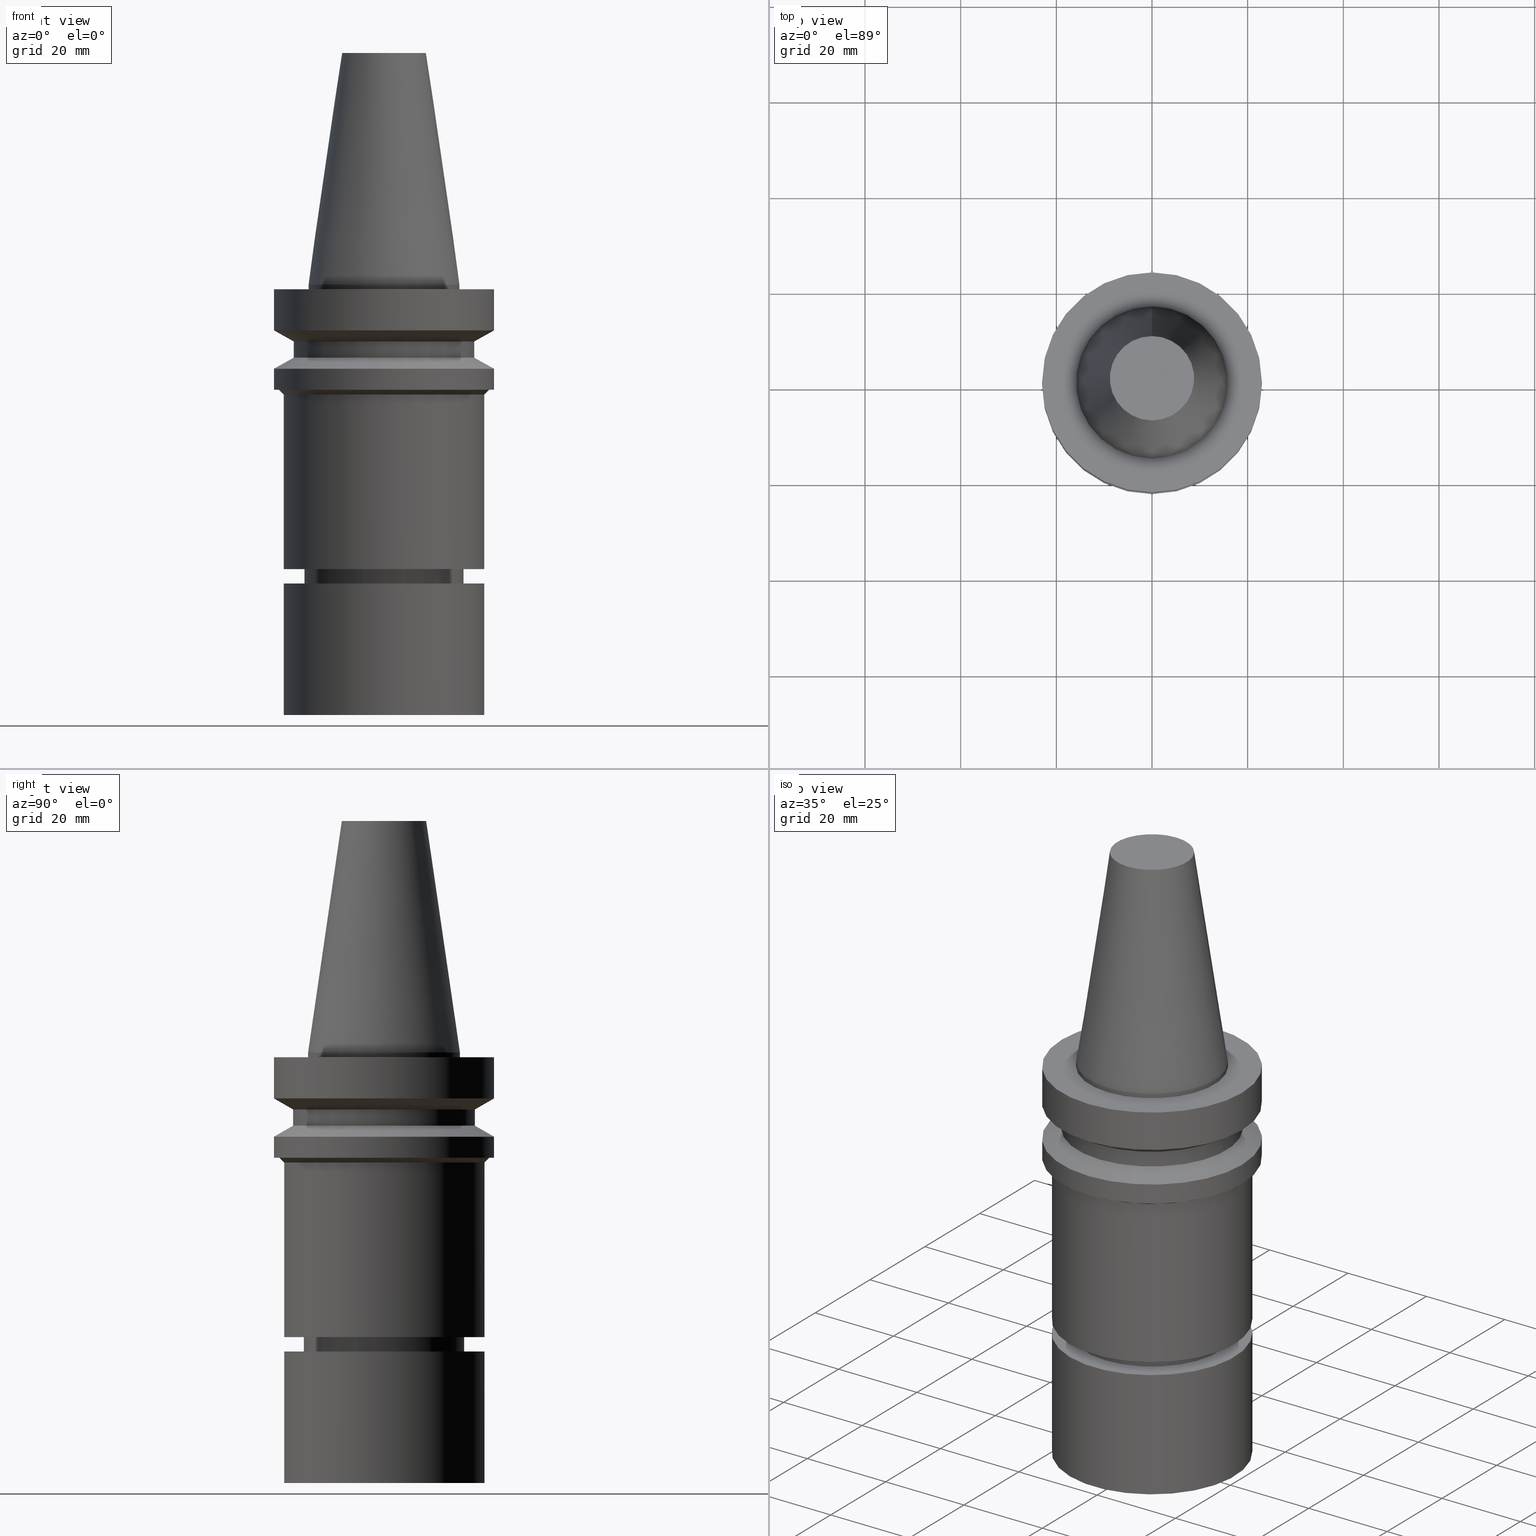
[diagram: canonical four-view strip — front | top / right | iso, engineering-drawing reading convention]
A machine part, canonical four-view strip (front | top / right | iso — engineering-drawing reading convention). The complete STEP part file that produces these views, byte-faithful:
ISO-10303-21;
HEADER;
FILE_DESCRIPTION((''),'1');
FILE_NAME('V:/90_\X2\53D65F9730C730FC30BF\X0\/00_\X2\6DE18DEF30C730FC30BF\X0\/ALL/BBT-BKUS\X2\FF76FF80FF9BFF78FF9E752852A05DE556F3\X0\201801/BBT30-MEGAER/BBT30-MEGAER25-90NL.stp','2018-02-02T07:28:23',(''),(''),'Spatial Interop R21 SP3','Kubotek KeyCreator 2011 V10.0.2 (22737)',' ');
FILE_SCHEMA(('automotive_design'));
ENDSEC;
DATA;
#1=MECHANICAL_DESIGN_GEOMETRIC_PRESENTATION_REPRESENTATION(' ',(#14,#15,#16,#17,#18,#19,#20,#21,#22,#23,#24,#25,#26,#27,#28,#29,#30,#31,#32,#33,#34,#35,#36,#37,#38,#39,#40,#41,#42,#43,#44,#45,#46,#47,#48,#49,#50,#51,#52,#53,#54,#55),#10);
#2=PRODUCT_DEFINITION_CONTEXT('',#56,'design');
#3=APPLICATION_PROTOCOL_DEFINITION('INTERNATIONAL STANDARD','automotive_design',1994,#56);
#4=PRODUCT_CATEGORY_RELATIONSHIP('NONE','NONE',#57,#58);
#5=SHAPE_DEFINITION_REPRESENTATION(#59,#60);
#6=PRODUCT_DEFINITION_CONTEXT('',#61,'design');
#7=APPLICATION_PROTOCOL_DEFINITION('INTERNATIONAL STANDARD','automotive_design',1994,#61);
#8=PRODUCT_CATEGORY_RELATIONSHIP('NONE','NONE',#62,#63);
#9=SHAPE_DEFINITION_REPRESENTATION(#64,#65);
#10= (GEOMETRIC_REPRESENTATION_CONTEXT(3)GLOBAL_UNCERTAINTY_ASSIGNED_CONTEXT((#68))GLOBAL_UNIT_ASSIGNED_CONTEXT((#70,#71,#72))REPRESENTATION_CONTEXT('NONE','WORKSPACE'));
#14=STYLED_ITEM('',(#74),#75);
#15=STYLED_ITEM('',(#76),#77);
#16=STYLED_ITEM('',(#78,#79),#80);
#17=STYLED_ITEM('',(#81,#82),#83);
#18=STYLED_ITEM('',(#84,#85),#86);
#19=STYLED_ITEM('',(#87),#88);
#20=STYLED_ITEM('',(#89,#90),#91);
#21=STYLED_ITEM('',(#92),#93);
#22=STYLED_ITEM('',(#94,#95),#96);
#23=STYLED_ITEM('',(#97,#98),#99);
#24=STYLED_ITEM('',(#100),#101);
#25=STYLED_ITEM('',(#102,#103),#104);
#26=STYLED_ITEM('',(#105,#106),#107);
#27=STYLED_ITEM('',(#108,#109),#110);
#28=STYLED_ITEM('',(#111),#112);
#29=STYLED_ITEM('',(#113),#114);
#30=STYLED_ITEM('',(#115,#116),#117);
#31=STYLED_ITEM('',(#118),#119);
#32=STYLED_ITEM('',(#120,#121),#122);
#33=STYLED_ITEM('',(#123),#124);
#34=STYLED_ITEM('',(#125,#126),#127);
#35=STYLED_ITEM('',(#128,#129),#130);
#36=STYLED_ITEM('',(#131,#132),#133);
#37=STYLED_ITEM('',(#134),#135);
#38=STYLED_ITEM('',(#136,#137),#138);
#39=STYLED_ITEM('',(#139,#140),#141);
#40=STYLED_ITEM('',(#142),#143);
#41=STYLED_ITEM('',(#144,#145),#146);
#42=STYLED_ITEM('',(#147),#148);
#43=STYLED_ITEM('',(#149),#150);
#44=STYLED_ITEM('',(#151,#152),#153);
#45=STYLED_ITEM('',(#154),#155);
#46=STYLED_ITEM('',(#156),#157);
#47=STYLED_ITEM('',(#158,#159),#160);
#48=STYLED_ITEM('',(#161),#162);
#49=STYLED_ITEM('',(#163,#164),#165);
#50=STYLED_ITEM('',(#166,#167),#168);
#51=STYLED_ITEM('',(#169,#170),#171);
#52=STYLED_ITEM('',(#172,#173),#174);
#53=STYLED_ITEM('',(#175),#176);
#54=STYLED_ITEM('',(#177),#178);
#55=STYLED_ITEM('',(#179),#180);
#56=APPLICATION_CONTEXT(' ');
#57=PRODUCT_CATEGORY('part','NONE');
#58=PRODUCT_RELATED_PRODUCT_CATEGORY('detail',' ',(#181));
#59=PRODUCT_DEFINITION_SHAPE('NONE','NONE',#182);
#60=ADVANCED_BREP_SHAPE_REPRESENTATION('Unnamed[1]',(#117,#183),#10);
#61=APPLICATION_CONTEXT(' ');
#62=PRODUCT_CATEGORY('part','NONE');
#63=PRODUCT_RELATED_PRODUCT_CATEGORY('detail',' ',(#184));
#64=PRODUCT_DEFINITION_SHAPE('NONE','NONE',#185);
#65=ADVANCED_BREP_SHAPE_REPRESENTATION('Unnamed[1]',(#130,#186),#10);
#68=UNCERTAINTY_MEASURE_WITH_UNIT(LENGTH_MEASURE(1.0E-006),#70,'','');
#70= (CONVERSION_BASED_UNIT('MILLIMETRE',#189)LENGTH_UNIT()NAMED_UNIT(#192));
#71= (NAMED_UNIT(#194)PLANE_ANGLE_UNIT()SI_UNIT($,.RADIAN.));
#72= (NAMED_UNIT(#194)SOLID_ANGLE_UNIT()SI_UNIT($,.STERADIAN.));
#74=PRESENTATION_STYLE_ASSIGNMENT((#200));
#75=EDGE_CURVE('Unnamed[1]',#201,#201,#202,.T.);
#76=PRESENTATION_STYLE_ASSIGNMENT((#203));
#77=EDGE_CURVE('Unnamed[1]',#204,#204,#205,.T.);
#78=PRESENTATION_STYLE_ASSIGNMENT((#206));
#79=PRESENTATION_STYLE_ASSIGNMENT((#207));
#80=ADVANCED_FACE('Unnamed[1]',(#208,#209),#210,.T.);
#81=PRESENTATION_STYLE_ASSIGNMENT((#211));
#82=PRESENTATION_STYLE_ASSIGNMENT((#212));
#83=ADVANCED_FACE('Unnamed[1]',(#213,#214),#215,.T.);
#84=PRESENTATION_STYLE_ASSIGNMENT((#216));
#85=PRESENTATION_STYLE_ASSIGNMENT((#217));
#86=ADVANCED_FACE('Unnamed[1]',(#218,#219),#220,.T.);
#87=PRESENTATION_STYLE_ASSIGNMENT((#221));
#88=EDGE_CURVE('Unnamed[1]',#222,#222,#223,.T.);
#89=PRESENTATION_STYLE_ASSIGNMENT((#224));
#90=PRESENTATION_STYLE_ASSIGNMENT((#225));
#91=ADVANCED_FACE('Unnamed[1]',(#226,#227),#228,.T.);
#92=PRESENTATION_STYLE_ASSIGNMENT((#229));
#93=EDGE_CURVE('Unnamed[1]',#230,#230,#231,.T.);
#94=PRESENTATION_STYLE_ASSIGNMENT((#232));
#95=PRESENTATION_STYLE_ASSIGNMENT((#233));
#96=ADVANCED_FACE('Unnamed[1]',(#234),#235,.T.);
#97=PRESENTATION_STYLE_ASSIGNMENT((#236));
#98=PRESENTATION_STYLE_ASSIGNMENT((#237));
#99=ADVANCED_FACE('Unnamed[1]',(#238,#239),#240,.T.);
#100=PRESENTATION_STYLE_ASSIGNMENT((#241));
#101=EDGE_CURVE('Unnamed[1]',#242,#242,#243,.T.);
#102=PRESENTATION_STYLE_ASSIGNMENT((#244));
#103=PRESENTATION_STYLE_ASSIGNMENT((#245));
#104=ADVANCED_FACE('Unnamed[1]',(#246,#247),#248,.T.);
#105=PRESENTATION_STYLE_ASSIGNMENT((#249));
#106=PRESENTATION_STYLE_ASSIGNMENT((#250));
#107=ADVANCED_FACE('Unnamed[1]',(#251),#252,.T.);
#108=PRESENTATION_STYLE_ASSIGNMENT((#253));
#109=PRESENTATION_STYLE_ASSIGNMENT((#254));
#110=ADVANCED_FACE('Unnamed[1]',(#255,#256),#257,.T.);
#111=PRESENTATION_STYLE_ASSIGNMENT((#258));
#112=EDGE_CURVE('Unnamed[1]',#259,#259,#260,.T.);
#113=PRESENTATION_STYLE_ASSIGNMENT((#261));
#114=EDGE_CURVE('Unnamed[1]',#262,#262,#263,.T.);
#115=PRESENTATION_STYLE_ASSIGNMENT((#264));
#116=PRESENTATION_STYLE_ASSIGNMENT((#265));
#117=MANIFOLD_SOLID_BREP('Unnamed[1]',#266);
#118=PRESENTATION_STYLE_ASSIGNMENT((#267));
#119=EDGE_CURVE('Unnamed[1]',#268,#268,#269,.T.);
#120=PRESENTATION_STYLE_ASSIGNMENT((#270));
#121=PRESENTATION_STYLE_ASSIGNMENT((#271));
#122=ADVANCED_FACE('Unnamed[1]',(#272,#273),#274,.T.);
#123=PRESENTATION_STYLE_ASSIGNMENT((#275));
#124=EDGE_CURVE('Unnamed[1]',#276,#276,#277,.T.);
#125=PRESENTATION_STYLE_ASSIGNMENT((#278));
#126=PRESENTATION_STYLE_ASSIGNMENT((#279));
#127=ADVANCED_FACE('Unnamed[1]',(#280,#281),#282,.T.);
#128=PRESENTATION_STYLE_ASSIGNMENT((#283));
#129=PRESENTATION_STYLE_ASSIGNMENT((#284));
#130=MANIFOLD_SOLID_BREP('Unnamed[1]',#285);
#131=PRESENTATION_STYLE_ASSIGNMENT((#286));
#132=PRESENTATION_STYLE_ASSIGNMENT((#287));
#133=ADVANCED_FACE('Unnamed[1]',(#288,#289),#290,.T.);
#134=PRESENTATION_STYLE_ASSIGNMENT((#291));
#135=EDGE_CURVE('Unnamed[1]',#292,#292,#293,.T.);
#136=PRESENTATION_STYLE_ASSIGNMENT((#294));
#137=PRESENTATION_STYLE_ASSIGNMENT((#295));
#138=ADVANCED_FACE('Unnamed[1]',(#296),#297,.T.);
#139=PRESENTATION_STYLE_ASSIGNMENT((#298));
#140=PRESENTATION_STYLE_ASSIGNMENT((#299));
#141=ADVANCED_FACE('Unnamed[1]',(#300),#301,.T.);
#142=PRESENTATION_STYLE_ASSIGNMENT((#302));
#143=EDGE_CURVE('Unnamed[1]',#303,#303,#304,.T.);
#144=PRESENTATION_STYLE_ASSIGNMENT((#305));
#145=PRESENTATION_STYLE_ASSIGNMENT((#306));
#146=ADVANCED_FACE('Unnamed[1]',(#307,#308),#309,.T.);
#147=PRESENTATION_STYLE_ASSIGNMENT((#310));
#148=EDGE_CURVE('Unnamed[1]',#311,#311,#312,.T.);
#149=PRESENTATION_STYLE_ASSIGNMENT((#313));
#150=EDGE_CURVE('Unnamed[1]',#314,#314,#315,.T.);
#151=PRESENTATION_STYLE_ASSIGNMENT((#316));
#152=PRESENTATION_STYLE_ASSIGNMENT((#317));
#153=ADVANCED_FACE('Unnamed[1]',(#318,#319),#320,.T.);
#154=PRESENTATION_STYLE_ASSIGNMENT((#321));
#155=EDGE_CURVE('Unnamed[1]',#322,#322,#323,.T.);
#156=PRESENTATION_STYLE_ASSIGNMENT((#324));
#157=EDGE_CURVE('Unnamed[1]',#325,#325,#326,.T.);
#158=PRESENTATION_STYLE_ASSIGNMENT((#327));
#159=PRESENTATION_STYLE_ASSIGNMENT((#328));
#160=ADVANCED_FACE('Unnamed[1]',(#329,#330),#331,.T.);
#161=PRESENTATION_STYLE_ASSIGNMENT((#332));
#162=EDGE_CURVE('Unnamed[1]',#333,#333,#334,.T.);
#163=PRESENTATION_STYLE_ASSIGNMENT((#335));
#164=PRESENTATION_STYLE_ASSIGNMENT((#336));
#165=ADVANCED_FACE('Unnamed[1]',(#337,#338),#339,.T.);
#166=PRESENTATION_STYLE_ASSIGNMENT((#340));
#167=PRESENTATION_STYLE_ASSIGNMENT((#341));
#168=ADVANCED_FACE('Unnamed[1]',(#342,#343),#344,.T.);
#169=PRESENTATION_STYLE_ASSIGNMENT((#345));
#170=PRESENTATION_STYLE_ASSIGNMENT((#346));
#171=ADVANCED_FACE('Unnamed[1]',(#347,#348),#349,.T.);
#172=PRESENTATION_STYLE_ASSIGNMENT((#350));
#173=PRESENTATION_STYLE_ASSIGNMENT((#351));
#174=ADVANCED_FACE('Unnamed[1]',(#352,#353),#354,.T.);
#175=PRESENTATION_STYLE_ASSIGNMENT((#355));
#176=EDGE_CURVE('Unnamed[1]',#356,#356,#357,.T.);
#177=PRESENTATION_STYLE_ASSIGNMENT((#358));
#178=EDGE_CURVE('Unnamed[1]',#359,#359,#360,.T.);
#179=PRESENTATION_STYLE_ASSIGNMENT((#361));
#180=EDGE_CURVE('Unnamed[1]',#362,#362,#363,.T.);
#181=PRODUCT('Unnamed[1]','Unnamed[1]','PART-Unnamed[1]-DESC',(#364));
#182=PRODUCT_DEFINITION('NONE','NONE',#365,#2);
#183=AXIS2_PLACEMENT_3D('',#366,#367,#368);
#184=PRODUCT('Unnamed[1]','Unnamed[1]','PART-Unnamed[1]-DESC',(#369));
#185=PRODUCT_DEFINITION('NONE','NONE',#370,#6);
#186=AXIS2_PLACEMENT_3D('',#371,#372,#373);
#189=LENGTH_MEASURE_WITH_UNIT(LENGTH_MEASURE(1.0),#374);
#192=DIMENSIONAL_EXPONENTS(1.0,0.0,0.0,0.0,0.0,0.0,0.0);
#194=DIMENSIONAL_EXPONENTS(0.0,0.0,0.0,0.0,0.0,0.0,0.0);
#200=CURVE_STYLE('',#375,POSITIVE_LENGTH_MEASURE(1000.0),#376);
#201=VERTEX_POINT('',#377);
#202=CIRCLE('',#378,16.0);
#203=CURVE_STYLE('',#379,POSITIVE_LENGTH_MEASURE(1000.0),#380);
#204=VERTEX_POINT('',#381);
#205=CIRCLE('',#382,23.0);
#206=SURFACE_STYLE_USAGE(.BOTH.,#383);
#207=CURVE_STYLE('',#384,POSITIVE_LENGTH_MEASURE(1000.0),#385);
#208=FACE_BOUND('',#386,.T.);
#209=FACE_OUTER_BOUND('',#387,.T.);
#210=PLANE('',#388);
#211=SURFACE_STYLE_USAGE(.BOTH.,#389);
#212=CURVE_STYLE('',#390,POSITIVE_LENGTH_MEASURE(1000.0),#391);
#213=FACE_BOUND('',#392,.T.);
#214=FACE_BOUND('',#393,.T.);
#215=CYLINDRICAL_SURFACE('',#394,16.0);
#216=SURFACE_STYLE_USAGE(.BOTH.,#395);
#217=CURVE_STYLE('',#396,POSITIVE_LENGTH_MEASURE(1000.0),#397);
#218=FACE_BOUND('',#398,.T.);
#219=FACE_BOUND('',#399,.T.);
#220=CONICAL_SURFACE('',#400,21.0,1.04719755058882);
#221=CURVE_STYLE('',#401,POSITIVE_LENGTH_MEASURE(1000.0),#402);
#222=VERTEX_POINT('',#403);
#223=CIRCLE('',#404,23.0);
#224=SURFACE_STYLE_USAGE(.BOTH.,#405);
#225=CURVE_STYLE('',#406,POSITIVE_LENGTH_MEASURE(1000.0),#407);
#226=FACE_BOUND('',#408,.T.);
#227=FACE_BOUND('',#409,.T.);
#228=CONICAL_SURFACE('',#410,21.0,1.04719755058881);
#229=CURVE_STYLE('',#411,POSITIVE_LENGTH_MEASURE(1000.0),#412);
#230=VERTEX_POINT('',#413);
#231=CIRCLE('',#414,14.9000000000005);
#232=SURFACE_STYLE_USAGE(.BOTH.,#415);
#233=CURVE_STYLE('',#416,POSITIVE_LENGTH_MEASURE(1000.0),#417);
#234=FACE_OUTER_BOUND('',#418,.T.);
#235=PLANE('',#419);
#236=SURFACE_STYLE_USAGE(.BOTH.,#420);
#237=CURVE_STYLE('',#421,POSITIVE_LENGTH_MEASURE(1000.0),#422);
#238=FACE_BOUND('',#423,.T.);
#239=FACE_BOUND('',#424,.T.);
#240=CYLINDRICAL_SURFACE('',#425,23.0);
#241=CURVE_STYLE('',#426,POSITIVE_LENGTH_MEASURE(1000.0),#427);
#242=VERTEX_POINT('',#428);
#243=CIRCLE('',#429,15.875);
#244=SURFACE_STYLE_USAGE(.BOTH.,#430);
#245=CURVE_STYLE('',#431,POSITIVE_LENGTH_MEASURE(1000.0),#432);
#246=FACE_BOUND('',#433,.T.);
#247=FACE_OUTER_BOUND('',#434,.T.);
#248=PLANE('',#435);
#249=SURFACE_STYLE_USAGE(.BOTH.,#436);
#250=CURVE_STYLE('',#437,POSITIVE_LENGTH_MEASURE(1000.0),#438);
#251=FACE_OUTER_BOUND('',#439,.T.);
#252=PLANE('',#440);
#253=SURFACE_STYLE_USAGE(.BOTH.,#441);
#254=CURVE_STYLE('',#442,POSITIVE_LENGTH_MEASURE(1000.0),#443);
#255=FACE_BOUND('',#444,.T.);
#256=FACE_BOUND('',#445,.T.);
#257=CONICAL_SURFACE('',#446,12.3457500009933,0.144815870013618);
#258=CURVE_STYLE('',#447,POSITIVE_LENGTH_MEASURE(1000.0),#448);
#259=VERTEX_POINT('',#449);
#260=CIRCLE('',#450,15.875);
#261=CURVE_STYLE('',#451,POSITIVE_LENGTH_MEASURE(1000.0),#452);
#262=VERTEX_POINT('',#453);
#263=CIRCLE('',#454,16.7499999999907);
#264=SURFACE_STYLE_USAGE(.BOTH.,#455);
#265=CURVE_STYLE('',#456,POSITIVE_LENGTH_MEASURE(1000.0),#457);
#266=CLOSED_SHELL('',(#107,#110,#146,#168,#133,#91,#127,#86,#99,#80,#122,#171,#104,#160,#174,#83,#153,#141));
#267=CURVE_STYLE('',#458,POSITIVE_LENGTH_MEASURE(1000.0),#459);
#268=VERTEX_POINT('',#460);
#269=CIRCLE('',#461,21.0);
#270=SURFACE_STYLE_USAGE(.BOTH.,#462);
#271=CURVE_STYLE('',#463,POSITIVE_LENGTH_MEASURE(1000.0),#464);
#272=FACE_BOUND('',#465,.T.);
#273=FACE_BOUND('',#466,.T.);
#274=CONICAL_SURFACE('',#467,21.5000000000002,0.785398163397448);
#275=CURVE_STYLE('',#468,POSITIVE_LENGTH_MEASURE(1000.0),#469);
#276=VERTEX_POINT('',#470);
#277=CIRCLE('',#471,23.0);
#278=SURFACE_STYLE_USAGE(.BOTH.,#472);
#279=CURVE_STYLE('',#473,POSITIVE_LENGTH_MEASURE(1000.0),#474);
#280=FACE_BOUND('',#475,.T.);
#281=FACE_BOUND('',#476,.T.);
#282=CYLINDRICAL_SURFACE('',#477,19.0);
#283=SURFACE_STYLE_USAGE(.BOTH.,#478);
#284=CURVE_STYLE('',#479,POSITIVE_LENGTH_MEASURE(1000.0),#480);
#285=CLOSED_SHELL('',(#138,#96,#165));
#286=SURFACE_STYLE_USAGE(.BOTH.,#481);
#287=CURVE_STYLE('',#482,POSITIVE_LENGTH_MEASURE(1000.0),#483);
#288=FACE_BOUND('',#484,.T.);
#289=FACE_BOUND('',#485,.T.);
#290=CYLINDRICAL_SURFACE('',#486,23.0);
#291=CURVE_STYLE('',#487,POSITIVE_LENGTH_MEASURE(1000.0),#488);
#292=VERTEX_POINT('',#489);
#293=CIRCLE('',#490,21.0);
#294=SURFACE_STYLE_USAGE(.BOTH.,#491);
#295=CURVE_STYLE('',#492,POSITIVE_LENGTH_MEASURE(1000.0),#493);
#296=FACE_OUTER_BOUND('',#494,.T.);
#297=PLANE('',#495);
#298=SURFACE_STYLE_USAGE(.BOTH.,#496);
#299=CURVE_STYLE('',#497,POSITIVE_LENGTH_MEASURE(1000.0),#498);
#300=FACE_OUTER_BOUND('',#499,.T.);
#301=PLANE('',#500);
#302=CURVE_STYLE('',#501,POSITIVE_LENGTH_MEASURE(1000.0),#502);
#303=VERTEX_POINT('',#503);
#304=CIRCLE('',#504,19.0);
#305=SURFACE_STYLE_USAGE(.BOTH.,#505);
#306=CURVE_STYLE('',#506,POSITIVE_LENGTH_MEASURE(1000.0),#507);
#307=FACE_BOUND('',#508,.T.);
#308=FACE_BOUND('',#509,.T.);
#309=CYLINDRICAL_SURFACE('',#510,15.875);
#310=CURVE_STYLE('',#511,POSITIVE_LENGTH_MEASURE(1000.0),#512);
#311=VERTEX_POINT('',#513);
#312=CIRCLE('',#514,8.81650000198669);
#313=CURVE_STYLE('',#515,POSITIVE_LENGTH_MEASURE(1000.0),#516);
#314=VERTEX_POINT('',#517);
#315=CIRCLE('',#518,23.0);
#316=SURFACE_STYLE_USAGE(.BOTH.,#519);
#317=CURVE_STYLE('',#520,POSITIVE_LENGTH_MEASURE(1000.0),#521);
#318=FACE_BOUND('',#522,.T.);
#319=FACE_BOUND('',#523,.T.);
#320=CONICAL_SURFACE('',#524,15.4500000000003,0.523598775598052);
#321=CURVE_STYLE('',#525,POSITIVE_LENGTH_MEASURE(1000.0),#526);
#322=VERTEX_POINT('',#527);
#323=CIRCLE('',#528,16.7500000000017);
#324=CURVE_STYLE('',#529,POSITIVE_LENGTH_MEASURE(1000.0),#530);
#325=VERTEX_POINT('',#531);
#326=CIRCLE('',#532,19.0);
#327=SURFACE_STYLE_USAGE(.BOTH.,#533);
#328=CURVE_STYLE('',#534,POSITIVE_LENGTH_MEASURE(1000.0),#535);
#329=FACE_BOUND('',#536,.T.);
#330=FACE_BOUND('',#537,.T.);
#331=CYLINDRICAL_SURFACE('',#538,16.7499999999962);
#332=CURVE_STYLE('',#539,POSITIVE_LENGTH_MEASURE(1000.0),#540);
#333=VERTEX_POINT('',#541);
#334=CIRCLE('',#542,16.0);
#335=SURFACE_STYLE_USAGE(.BOTH.,#543);
#336=CURVE_STYLE('',#544,POSITIVE_LENGTH_MEASURE(1000.0),#545);
#337=FACE_BOUND('',#546,.T.);
#338=FACE_BOUND('',#547,.T.);
#339=CYLINDRICAL_SURFACE('',#548,21.0);
#340=SURFACE_STYLE_USAGE(.BOTH.,#549);
#341=CURVE_STYLE('',#550,POSITIVE_LENGTH_MEASURE(1000.0),#551);
#342=FACE_OUTER_BOUND('',#552,.T.);
#343=FACE_BOUND('',#553,.T.);
#344=PLANE('',#554);
#345=SURFACE_STYLE_USAGE(.BOTH.,#555);
#346=CURVE_STYLE('',#556,POSITIVE_LENGTH_MEASURE(1000.0),#557);
#347=FACE_BOUND('',#558,.T.);
#348=FACE_BOUND('',#559,.T.);
#349=CYLINDRICAL_SURFACE('',#560,21.0000000000002);
#350=SURFACE_STYLE_USAGE(.BOTH.,#561);
#351=CURVE_STYLE('',#562,POSITIVE_LENGTH_MEASURE(1000.0),#563);
#352=FACE_BOUND('',#564,.T.);
#353=FACE_BOUND('',#565,.T.);
#354=CONICAL_SURFACE('',#566,16.3750000000008,1.0471975512007);
#355=CURVE_STYLE('',#567,POSITIVE_LENGTH_MEASURE(1000.0),#568);
#356=VERTEX_POINT('',#569);
#357=CIRCLE('',#570,22.0000000000002);
#358=CURVE_STYLE('',#571,POSITIVE_LENGTH_MEASURE(1000.0),#572);
#359=VERTEX_POINT('',#573);
#360=CIRCLE('',#574,21.0000000000002);
#361=CURVE_STYLE('',#575,POSITIVE_LENGTH_MEASURE(1000.0),#576);
#362=VERTEX_POINT('',#577);
#363=CIRCLE('',#578,21.0000000000002);
#364=PRODUCT_CONTEXT('',#56,'mechanical');
#365=PRODUCT_DEFINITION_FORMATION_WITH_SPECIFIED_SOURCE(' ','NONE',#181,.NOT_KNOWN.);
#366=CARTESIAN_POINT('',(0.0,0.0,0.0));
#367=DIRECTION('',(0.0,0.0,1.0));
#368=DIRECTION('',(1.0,0.0,0.0));
#369=PRODUCT_CONTEXT('',#61,'mechanical');
#370=PRODUCT_DEFINITION_FORMATION_WITH_SPECIFIED_SOURCE(' ','NONE',#184,.NOT_KNOWN.);
#371=CARTESIAN_POINT('',(0.0,0.0,0.0));
#372=DIRECTION('',(0.0,0.0,1.0));
#373=DIRECTION('',(1.0,0.0,0.0));
#374= (NAMED_UNIT(#192)LENGTH_UNIT()SI_UNIT(.MILLI.,.METRE.));
#375=DRAUGHTING_PRE_DEFINED_CURVE_FONT('continuous');
#376=COLOUR_RGB('',0.0,1.0,0.0);
#377=CARTESIAN_POINT('',(4.03523187322559E-015,16.0,-65.90033756729));
#378=AXIS2_PLACEMENT_3D('',#580,#581,#582);
#379=DRAUGHTING_PRE_DEFINED_CURVE_FONT('continuous');
#380=COLOUR_RGB('',0.0,1.0,0.0);
#381=CARTESIAN_POINT('',(6.12323399573674E-017,23.0,-0.999999999999997));
#382=AXIS2_PLACEMENT_3D('',#583,#584,#585);
#383=SURFACE_SIDE_STYLE('',(#586));
#384=DRAUGHTING_PRE_DEFINED_CURVE_FONT('continuous');
#385=COLOUR_RGB('',0.0,1.0,0.0);
#386=EDGE_LOOP('',(#587));
#387=EDGE_LOOP('',(#588));
#388=AXIS2_PLACEMENT_3D('',#589,#590,#591);
#389=SURFACE_SIDE_STYLE('',(#592));
#390=DRAUGHTING_PRE_DEFINED_CURVE_FONT('continuous');
#391=COLOUR_RGB('',0.0,1.0,0.0);
#392=EDGE_LOOP('',(#593));
#393=EDGE_LOOP('',(#594));
#394=AXIS2_PLACEMENT_3D('',#595,#596,#597);
#395=SURFACE_SIDE_STYLE('',(#598));
#396=DRAUGHTING_PRE_DEFINED_CURVE_FONT('continuous');
#397=COLOUR_RGB('',0.0,1.0,0.0);
#398=EDGE_LOOP('',(#599));
#399=EDGE_LOOP('',(#600));
#400=AXIS2_PLACEMENT_3D('',#601,#602,#603);
#401=DRAUGHTING_PRE_DEFINED_CURVE_FONT('continuous');
#402=COLOUR_RGB('',0.0,1.0,0.0);
#403=CARTESIAN_POINT('',(1.07768918324967E-015,23.0,-17.6));
#404=AXIS2_PLACEMENT_3D('',#604,#605,#606);
#405=SURFACE_SIDE_STYLE('',(#607));
#406=DRAUGHTING_PRE_DEFINED_CURVE_FONT('continuous');
#407=COLOUR_RGB('',0.0,1.0,0.0);
#408=EDGE_LOOP('',(#608));
#409=EDGE_LOOP('',(#609));
#410=AXIS2_PLACEMENT_3D('',#610,#611,#612);
#411=DRAUGHTING_PRE_DEFINED_CURVE_FONT('continuous');
#412=COLOUR_RGB('',0.0,1.0,0.0);
#413=CARTESIAN_POINT('',(4.88634072859796E-015,14.9000000000005,-79.8000000000004));
#414=AXIS2_PLACEMENT_3D('',#613,#614,#615);
#415=SURFACE_SIDE_STYLE('',(#616));
#416=DRAUGHTING_PRE_DEFINED_CURVE_FONT('continuous');
#417=COLOUR_RGB('',0.0,1.0,0.0);
#418=EDGE_LOOP('',(#617));
#419=AXIS2_PLACEMENT_3D('',#618,#619,#620);
#420=SURFACE_SIDE_STYLE('',(#621));
#421=DRAUGHTING_PRE_DEFINED_CURVE_FONT('continuous');
#422=COLOUR_RGB('',0.0,1.0,0.0);
#423=EDGE_LOOP('',(#622));
#424=EDGE_LOOP('',(#623));
#425=AXIS2_PLACEMENT_3D('',#624,#625,#626);
#426=DRAUGHTING_PRE_DEFINED_CURVE_FONT('continuous');
#427=COLOUR_RGB('',0.0,1.0,0.0);
#428=CARTESIAN_POINT('',(-1.95674482349743E-031,15.875,1.94412679364642E-015));
#429=AXIS2_PLACEMENT_3D('',#627,#628,#629);
#430=SURFACE_SIDE_STYLE('',(#630));
#431=DRAUGHTING_PRE_DEFINED_CURVE_FONT('continuous');
#432=COLOUR_RGB('',0.0,1.0,0.0);
#433=EDGE_LOOP('',(#631));
#434=EDGE_LOOP('',(#632));
#435=AXIS2_PLACEMENT_3D('',#633,#634,#635);
#436=SURFACE_SIDE_STYLE('',(#636));
#437=DRAUGHTING_PRE_DEFINED_CURVE_FONT('continuous');
#438=COLOUR_RGB('',0.0,1.0,0.0);
#439=EDGE_LOOP('',(#637));
#440=AXIS2_PLACEMENT_3D('',#638,#639,#640);
#441=SURFACE_SIDE_STYLE('',(#641));
#442=DRAUGHTING_PRE_DEFINED_CURVE_FONT('continuous');
#443=COLOUR_RGB('',0.0,1.0,0.0);
#444=EDGE_LOOP('',(#642));
#445=EDGE_LOOP('',(#643));
#446=AXIS2_PLACEMENT_3D('',#644,#645,#646);
#447=DRAUGHTING_PRE_DEFINED_CURVE_FONT('continuous');
#448=COLOUR_RGB('',0.0,1.0,0.0);
#449=CARTESIAN_POINT('',(6.12323399573675E-017,15.875,-0.999999999999998));
#450=AXIS2_PLACEMENT_3D('',#647,#648,#649);
#451=DRAUGHTING_PRE_DEFINED_CURVE_FONT('continuous');
#452=COLOUR_RGB('',0.0,1.0,0.0);
#453=CARTESIAN_POINT('',(3.64332422746333E-015,16.7499999999907,-59.4999999999992));
#454=AXIS2_PLACEMENT_3D('',#650,#651,#652);
#455=SURFACE_SIDE_STYLE('',(#653));
#456=DRAUGHTING_PRE_DEFINED_CURVE_FONT('continuous');
#457=COLOUR_RGB('',0.0,1.0,0.0);
#458=DRAUGHTING_PRE_DEFINED_CURVE_FONT('continuous');
#459=COLOUR_RGB('',0.0,1.0,0.0);
#460=CARTESIAN_POINT('',(3.82702124733548E-015,21.0,-62.5));
#461=AXIS2_PLACEMENT_3D('',#654,#655,#656);
#462=SURFACE_SIDE_STYLE('',(#657));
#463=DRAUGHTING_PRE_DEFINED_CURVE_FONT('continuous');
#464=COLOUR_RGB('',0.0,1.0,0.0);
#465=EDGE_LOOP('',(#658));
#466=EDGE_LOOP('',(#659));
#467=AXIS2_PLACEMENT_3D('',#660,#661,#662);
#468=DRAUGHTING_PRE_DEFINED_CURVE_FONT('continuous');
#469=COLOUR_RGB('',0.0,1.0,0.0);
#470=CARTESIAN_POINT('',(5.87830463590729E-016,23.0,-9.59999999999999));
#471=AXIS2_PLACEMENT_3D('',#663,#664,#665);
#472=SURFACE_SIDE_STYLE('',(#666));
#473=DRAUGHTING_PRE_DEFINED_CURVE_FONT('continuous');
#474=COLOUR_RGB('',0.0,1.0,0.0);
#475=EDGE_LOOP('',(#667));
#476=EDGE_LOOP('',(#668));
#477=AXIS2_PLACEMENT_3D('',#669,#670,#671);
#478=SURFACE_SIDE_STYLE('',(#672));
#479=DRAUGHTING_PRE_DEFINED_CURVE_FONT('continuous');
#480=COLOUR_RGB('',0.0,1.0,0.0);
#481=SURFACE_SIDE_STYLE('',(#673));
#482=DRAUGHTING_PRE_DEFINED_CURVE_FONT('continuous');
#483=COLOUR_RGB('',0.0,1.0,0.0);
#484=EDGE_LOOP('',(#674));
#485=EDGE_LOOP('',(#675));
#486=AXIS2_PLACEMENT_3D('',#676,#677,#678);
#487=DRAUGHTING_PRE_DEFINED_CURVE_FONT('continuous');
#488=COLOUR_RGB('',0.0,1.0,0.0);
#489=CARTESIAN_POINT('',(5.51091059616309E-015,21.0,-90.0));
#490=AXIS2_PLACEMENT_3D('',#679,#680,#681);
#491=SURFACE_SIDE_STYLE('',(#682));
#492=DRAUGHTING_PRE_DEFINED_CURVE_FONT('continuous');
#493=COLOUR_RGB('',0.0,1.0,0.0);
#494=EDGE_LOOP('',(#683));
#495=AXIS2_PLACEMENT_3D('',#684,#685,#686);
#496=SURFACE_SIDE_STYLE('',(#687));
#497=DRAUGHTING_PRE_DEFINED_CURVE_FONT('continuous');
#498=COLOUR_RGB('',0.0,1.0,0.0);
#499=EDGE_LOOP('',(#688));
#500=AXIS2_PLACEMENT_3D('',#689,#690,#691);
#501=DRAUGHTING_PRE_DEFINED_CURVE_FONT('continuous');
#502=COLOUR_RGB('',0.0,1.0,0.0);
#503=CARTESIAN_POINT('',(9.36279151221199E-016,19.0,-15.29059892));
#504=AXIS2_PLACEMENT_3D('',#692,#693,#694);
#505=SURFACE_SIDE_STYLE('',(#695));
#506=DRAUGHTING_PRE_DEFINED_CURVE_FONT('continuous');
#507=COLOUR_RGB('',0.0,1.0,0.0);
#508=EDGE_LOOP('',(#696));
#509=EDGE_LOOP('',(#697));
#510=AXIS2_PLACEMENT_3D('',#698,#699,#700);
#511=DRAUGHTING_PRE_DEFINED_CURVE_FONT('continuous');
#512=COLOUR_RGB('',0.0,1.0,0.0);
#513=CARTESIAN_POINT('',(-2.96364525393659E-015,8.81650000198669,48.4));
#514=AXIS2_PLACEMENT_3D('',#701,#702,#703);
#515=DRAUGHTING_PRE_DEFINED_CURVE_FONT('continuous');
#516=COLOUR_RGB('',0.0,1.0,0.0);
#517=CARTESIAN_POINT('',(1.34711147906209E-015,23.0,-22.0));
#518=AXIS2_PLACEMENT_3D('',#704,#705,#706);
#519=SURFACE_SIDE_STYLE('',(#707));
#520=DRAUGHTING_PRE_DEFINED_CURVE_FONT('continuous');
#521=COLOUR_RGB('',0.0,1.0,0.0);
#522=EDGE_LOOP('',(#708));
#523=EDGE_LOOP('',(#709));
#524=AXIS2_PLACEMENT_3D('',#710,#711,#712);
#525=DRAUGHTING_PRE_DEFINED_CURVE_FONT('continuous');
#526=COLOUR_RGB('',0.0,1.0,0.0);
#527=CARTESIAN_POINT('',(4.00871749225766E-015,16.7500000000017,-65.467324865401));
#528=AXIS2_PLACEMENT_3D('',#713,#714,#715);
#529=DRAUGHTING_PRE_DEFINED_CURVE_FONT('continuous');
#530=COLOUR_RGB('',0.0,1.0,0.0);
#531=CARTESIAN_POINT('',(7.29240495619202E-016,19.0,-11.90940108));
#532=AXIS2_PLACEMENT_3D('',#716,#717,#718);
#533=SURFACE_SIDE_STYLE('',(#719));
#534=DRAUGHTING_PRE_DEFINED_CURVE_FONT('continuous');
#535=COLOUR_RGB('',0.0,1.0,0.0);
#536=EDGE_LOOP('',(#720));
#537=EDGE_LOOP('',(#721));
#538=AXIS2_PLACEMENT_3D('',#722,#723,#724);
#539=DRAUGHTING_PRE_DEFINED_CURVE_FONT('continuous');
#540=COLOUR_RGB('',0.0,1.0,0.0);
#541=CARTESIAN_POINT('',(4.76967745233821E-015,16.0,-77.8947441116744));
#542=AXIS2_PLACEMENT_3D('',#725,#726,#727);
#543=SURFACE_SIDE_STYLE('',(#728));
#544=DRAUGHTING_PRE_DEFINED_CURVE_FONT('continuous');
#545=COLOUR_RGB('',0.0,1.0,0.0);
#546=EDGE_LOOP('',(#729));
#547=EDGE_LOOP('',(#730));
#548=AXIS2_PLACEMENT_3D('',#731,#732,#733);
#549=SURFACE_SIDE_STYLE('',(#734));
#550=DRAUGHTING_PRE_DEFINED_CURVE_FONT('continuous');
#551=COLOUR_RGB('',0.0,1.0,0.0);
#552=EDGE_LOOP('',(#735));
#553=EDGE_LOOP('',(#736));
#554=AXIS2_PLACEMENT_3D('',#737,#738,#739);
#555=SURFACE_SIDE_STYLE('',(#740));
#556=DRAUGHTING_PRE_DEFINED_CURVE_FONT('continuous');
#557=COLOUR_RGB('',0.0,1.0,0.0);
#558=EDGE_LOOP('',(#741));
#559=EDGE_LOOP('',(#742));
#560=AXIS2_PLACEMENT_3D('',#743,#744,#745);
#561=SURFACE_SIDE_STYLE('',(#746));
#562=DRAUGHTING_PRE_DEFINED_CURVE_FONT('continuous');
#563=COLOUR_RGB('',0.0,1.0,0.0);
#564=EDGE_LOOP('',(#747));
#565=EDGE_LOOP('',(#748));
#566=AXIS2_PLACEMENT_3D('',#749,#750,#751);
#567=DRAUGHTING_PRE_DEFINED_CURVE_FONT('continuous');
#568=COLOUR_RGB('',0.0,1.0,0.0);
#569=CARTESIAN_POINT('',(1.34711147906209E-015,22.0000000000002,-22.0));
#570=AXIS2_PLACEMENT_3D('',#752,#753,#754);
#571=DRAUGHTING_PRE_DEFINED_CURVE_FONT('continuous');
#572=COLOUR_RGB('',0.0,1.0,0.0);
#573=CARTESIAN_POINT('',(1.40834381901946E-015,21.0000000000002,-23.0));
#574=AXIS2_PLACEMENT_3D('',#755,#756,#757);
#575=DRAUGHTING_PRE_DEFINED_CURVE_FONT('continuous');
#576=COLOUR_RGB('',0.0,1.0,0.0);
#577=CARTESIAN_POINT('',(3.64332422746337E-015,21.0000000000002,-59.5));
#578=AXIS2_PLACEMENT_3D('',#758,#759,#760);
#580=CARTESIAN_POINT('',(4.03523187322559E-015,8.07046374645118E-015,-65.90033756729));
#581=DIRECTION('',(6.12323399573677E-017,1.2246467991476E-016,-1.0));
#582=DIRECTION('',(-1.23259516440783E-032,1.0,1.2246467991476E-016));
#583=CARTESIAN_POINT('',(6.12323399573677E-017,1.22464679914735E-016,-1.0));
#584=DIRECTION('',(6.12323399573677E-017,1.22464679914716E-016,-1.0));
#585=DIRECTION('',(-1.23259516440783E-032,1.0,1.22464679914716E-016));
#586=SURFACE_STYLE_FILL_AREA(#761);
#587=ORIENTED_EDGE('',*,*,#176,.F.);
#588=ORIENTED_EDGE('',*,*,#150,.T.);
#589=CARTESIAN_POINT('',(1.34711147906209E-015,22.5000000000001,-22.0));
#590=DIRECTION('',(6.12323399573677E-017,1.22464679914735E-016,-1.0));
#591=DIRECTION('',(-1.23259516440783E-032,1.0,1.22464679914735E-016));
#592=SURFACE_STYLE_FILL_AREA(#762);
#593=ORIENTED_EDGE('',*,*,#162,.F.);
#594=ORIENTED_EDGE('',*,*,#75,.T.);
#595=CARTESIAN_POINT('',(4.4024546627819E-015,8.8049093255638E-015,-71.8975408394822));
#596=DIRECTION('',(6.12323399573677E-017,1.2246467991476E-016,-1.0));
#597=DIRECTION('',(-1.23259516440783E-032,1.0,1.2246467991476E-016));
#598=SURFACE_STYLE_FILL_AREA(#763);
#599=ORIENTED_EDGE('',*,*,#88,.F.);
#600=ORIENTED_EDGE('',*,*,#143,.T.);
#601=CARTESIAN_POINT('',(1.00698416723543E-015,2.01396833447087E-015,-16.44529946));
#602=DIRECTION('',(6.12323399573677E-017,1.2246467991477E-016,-1.0));
#603=DIRECTION('',(-1.23259516440783E-032,1.0,1.2246467991477E-016));
#604=CARTESIAN_POINT('',(1.07768918324967E-015,2.15537836649934E-015,-17.6));
#605=DIRECTION('',(6.12323399573677E-017,1.22464679914716E-016,-1.0));
#606=DIRECTION('',(-1.23259516440783E-032,1.0,1.22464679914716E-016));
#607=SURFACE_STYLE_FILL_AREA(#764);
#608=ORIENTED_EDGE('',*,*,#157,.F.);
#609=ORIENTED_EDGE('',*,*,#124,.T.);
#610=CARTESIAN_POINT('',(6.58535479604966E-016,1.31707095920993E-015,-10.75470054));
#611=DIRECTION('',(-6.12323399573677E-017,-1.2246467991477E-016,1.0));
#612=DIRECTION('',(-1.23259516440783E-032,1.0,1.2246467991477E-016));
#613=CARTESIAN_POINT('',(4.88634072859796E-015,9.77268145719592E-015,-79.8000000000004));
#614=DIRECTION('',(6.12323399573677E-017,1.22464679914714E-016,-1.0));
#615=DIRECTION('',(-1.23259516440791E-032,1.0,1.22464679914714E-016));
#616=SURFACE_STYLE_FILL_AREA(#765);
#617=ORIENTED_EDGE('',*,*,#119,.F.);
#618=CARTESIAN_POINT('',(3.82702124733548E-015,10.5,-62.5));
#619=DIRECTION('',(-6.12323399573677E-017,-1.22464679914735E-016,1.0));
#620=DIRECTION('',(1.23259516440783E-032,-1.0,-1.22464679914735E-016));
#621=SURFACE_STYLE_FILL_AREA(#766);
#622=ORIENTED_EDGE('',*,*,#150,.F.);
#623=ORIENTED_EDGE('',*,*,#88,.T.);
#624=CARTESIAN_POINT('',(1.21240033115588E-015,2.42480066231176E-015,-19.8));
#625=DIRECTION('',(6.12323399573677E-017,1.22464679914716E-016,-1.0));
#626=DIRECTION('',(-1.23259516440783E-032,1.0,1.22464679914716E-016));
#627=CARTESIAN_POINT('',(0.0,0.0,0.0));
#628=DIRECTION('',(6.12323399573677E-017,1.22464679914714E-016,-1.0));
#629=DIRECTION('',(-1.23259516440783E-032,1.0,1.22464679914714E-016));
#630=SURFACE_STYLE_FILL_AREA(#767);
#631=ORIENTED_EDGE('',*,*,#114,.F.);
#632=ORIENTED_EDGE('',*,*,#180,.T.);
#633=CARTESIAN_POINT('',(3.64332422746335E-015,18.8749999999955,-59.4999999999996));
#634=DIRECTION('',(6.12323399573677E-017,-1.72079657162739E-013,-1.0));
#635=DIRECTION('',(1.05320129144053E-029,1.0,-1.72079657162739E-013));
#636=SURFACE_STYLE_FILL_AREA(#768);
#637=ORIENTED_EDGE('',*,*,#148,.F.);
#638=CARTESIAN_POINT('',(-2.96364525393659E-015,4.40825000099334,48.4));
#639=DIRECTION('',(-6.12323399573677E-017,-1.22464679914735E-016,1.0));
#640=DIRECTION('',(1.23259516440783E-032,-1.0,-1.22464679914735E-016));
#641=SURFACE_STYLE_FILL_AREA(#769);
#642=ORIENTED_EDGE('',*,*,#101,.F.);
#643=ORIENTED_EDGE('',*,*,#148,.T.);
#644=CARTESIAN_POINT('',(-1.4818226269683E-015,-2.96364525393659E-015,24.2));
#645=DIRECTION('',(6.12323399573677E-017,1.22464679914699E-016,-1.0));
#646=DIRECTION('',(-1.23259516440749E-032,1.0,1.22464679914699E-016));
#647=CARTESIAN_POINT('',(6.12323399573677E-017,1.22464679914735E-016,-1.0));
#648=DIRECTION('',(6.12323399573677E-017,1.22464679914714E-016,-1.0));
#649=DIRECTION('',(-1.23259516440783E-032,1.0,1.22464679914714E-016));
#650=CARTESIAN_POINT('',(3.64332422746333E-015,7.28664845492665E-015,-59.4999999999992));
#651=DIRECTION('',(6.12323399573677E-017,1.22464679914705E-016,-1.0));
#652=DIRECTION('',(-1.23259516440798E-032,1.0,1.22464679914705E-016));
#653=SURFACE_STYLE_FILL_AREA(#770);
#654=CARTESIAN_POINT('',(3.82702124733548E-015,7.65404249467096E-015,-62.5));
#655=DIRECTION('',(6.12323399573677E-017,1.22464679914735E-016,-1.0));
#656=DIRECTION('',(-1.23259516440783E-032,1.0,1.22464679914735E-016));
#657=SURFACE_STYLE_FILL_AREA(#771);
#658=ORIENTED_EDGE('',*,*,#178,.F.);
#659=ORIENTED_EDGE('',*,*,#176,.T.);
#660=CARTESIAN_POINT('',(1.37772764904077E-015,2.75545529808154E-015,-22.5));
#661=DIRECTION('',(-6.12323399573677E-017,-1.22464679914755E-016,1.0));
#662=DIRECTION('',(-1.23259516440782E-032,1.0,1.22464679914755E-016));
#663=CARTESIAN_POINT('',(5.87830463590729E-016,1.17566092718146E-015,-9.59999999999999));
#664=DIRECTION('',(6.12323399573677E-017,1.22464679914716E-016,-1.0));
#665=DIRECTION('',(-1.23259516440783E-032,1.0,1.22464679914716E-016));
#666=SURFACE_STYLE_FILL_AREA(#772);
#667=ORIENTED_EDGE('',*,*,#143,.F.);
#668=ORIENTED_EDGE('',*,*,#157,.T.);
#669=CARTESIAN_POINT('',(8.32759823420201E-016,1.6655196468404E-015,-13.6));
#670=DIRECTION('',(6.12323399573677E-017,1.22464679914665E-016,-1.0));
#671=DIRECTION('',(-1.23259516440783E-032,1.0,1.22464679914665E-016));
#672=SURFACE_STYLE_FILL_AREA(#773);
#673=SURFACE_STYLE_FILL_AREA(#774);
#674=ORIENTED_EDGE('',*,*,#124,.F.);
#675=ORIENTED_EDGE('',*,*,#77,.T.);
#676=CARTESIAN_POINT('',(3.24531401774048E-016,6.49062803548097E-016,-5.3));
#677=DIRECTION('',(6.12323399573677E-017,1.22464679914716E-016,-1.0));
#678=DIRECTION('',(-1.23259516440783E-032,1.0,1.22464679914716E-016));
#679=CARTESIAN_POINT('',(5.51091059616309E-015,1.10218211923262E-014,-90.0));
#680=DIRECTION('',(6.12323399573677E-017,1.22464679914735E-016,-1.0));
#681=DIRECTION('',(-1.23259516440783E-032,1.0,1.22464679914735E-016));
#682=SURFACE_STYLE_FILL_AREA(#775);
#683=ORIENTED_EDGE('',*,*,#135,.T.);
#684=CARTESIAN_POINT('',(5.51091059616309E-015,10.5,-90.0));
#685=DIRECTION('',(6.12323399573677E-017,1.22464679914735E-016,-1.0));
#686=DIRECTION('',(-1.23259516440783E-032,1.0,1.22464679914735E-016));
#687=SURFACE_STYLE_FILL_AREA(#776);
#688=ORIENTED_EDGE('',*,*,#93,.T.);
#689=CARTESIAN_POINT('',(4.88634072859795E-015,7.45000000000027,-79.8000000000002));
#690=DIRECTION('',(6.12323399573677E-017,-2.7536245839605E-014,-1.0));
#691=DIRECTION('',(1.68128161366957E-030,1.0,-2.7536245839605E-014));
#692=CARTESIAN_POINT('',(9.36279151221199E-016,1.8725583024424E-015,-15.29059892));
#693=DIRECTION('',(6.12323399573677E-017,1.22464679914665E-016,-1.0));
#694=DIRECTION('',(-1.23259516440783E-032,1.0,1.22464679914665E-016));
#695=SURFACE_STYLE_FILL_AREA(#777);
#696=ORIENTED_EDGE('',*,*,#112,.F.);
#697=ORIENTED_EDGE('',*,*,#101,.T.);
#698=CARTESIAN_POINT('',(3.06161699786838E-017,6.12323399573676E-017,-0.5));
#699=DIRECTION('',(6.12323399573677E-017,1.22464679914714E-016,-1.0));
#700=DIRECTION('',(-1.23259516440783E-032,1.0,1.22464679914714E-016));
#701=CARTESIAN_POINT('',(-2.96364525393659E-015,-5.92729050787319E-015,48.4));
#702=DIRECTION('',(6.12323399573677E-017,1.22464679914764E-016,-1.0));
#703=DIRECTION('',(-1.23259516440789E-032,1.0,1.22464679914764E-016));
#704=CARTESIAN_POINT('',(1.34711147906209E-015,2.69422295812418E-015,-22.0));
#705=DIRECTION('',(6.12323399573677E-017,1.22464679914716E-016,-1.0));
#706=DIRECTION('',(-1.23259516440783E-032,1.0,1.22464679914716E-016));
#707=SURFACE_STYLE_FILL_AREA(#778);
#708=ORIENTED_EDGE('',*,*,#93,.F.);
#709=ORIENTED_EDGE('',*,*,#162,.T.);
#710=CARTESIAN_POINT('',(4.82800909046809E-015,9.65601818093617E-015,-78.8473720558374));
#711=DIRECTION('',(-6.12323399573676E-017,-1.22464679914738E-016,1.0));
#712=DIRECTION('',(-1.23259516440758E-032,1.0,1.22464679914738E-016));
#713=CARTESIAN_POINT('',(4.00871749225766E-015,8.01743498451532E-015,-65.467324865401));
#714=DIRECTION('',(6.12323399573677E-017,1.22464679914721E-016,-1.0));
#715=DIRECTION('',(-1.23259516440771E-032,1.0,1.22464679914721E-016));
#716=CARTESIAN_POINT('',(7.29240495619202E-016,1.4584809912384E-015,-11.90940108));
#717=DIRECTION('',(6.12323399573677E-017,1.22464679914665E-016,-1.0));
#718=DIRECTION('',(-1.23259516440783E-032,1.0,1.22464679914665E-016));
#719=SURFACE_STYLE_FILL_AREA(#779);
#720=ORIENTED_EDGE('',*,*,#155,.F.);
#721=ORIENTED_EDGE('',*,*,#114,.T.);
#722=CARTESIAN_POINT('',(3.82602085986049E-015,7.65204171972099E-015,-62.4836624327001));
#723=DIRECTION('',(6.12323399573676E-017,1.22464679914761E-016,-1.0));
#724=DIRECTION('',(-1.23259516440758E-032,1.0,1.22464679914761E-016));
#725=CARTESIAN_POINT('',(4.76967745233821E-015,9.53935490467642E-015,-77.8947441116744));
#726=DIRECTION('',(6.12323399573677E-017,1.2246467991476E-016,-1.0));
#727=DIRECTION('',(-1.23259516440783E-032,1.0,1.2246467991476E-016));
#728=SURFACE_STYLE_FILL_AREA(#780);
#729=ORIENTED_EDGE('',*,*,#135,.F.);
#730=ORIENTED_EDGE('',*,*,#119,.T.);
#731=CARTESIAN_POINT('',(4.66896592174928E-015,9.33793184349857E-015,-76.25));
#732=DIRECTION('',(6.12323399573677E-017,1.22464679914735E-016,-1.0));
#733=DIRECTION('',(-1.23259516440783E-032,1.0,1.22464679914735E-016));
#734=SURFACE_STYLE_FILL_AREA(#781);
#735=ORIENTED_EDGE('',*,*,#77,.F.);
#736=ORIENTED_EDGE('',*,*,#112,.T.);
#737=CARTESIAN_POINT('',(6.12323399573674E-017,19.4375,-0.999999999999998));
#738=DIRECTION('',(-6.12323399573677E-017,-1.22464679914735E-016,1.0));
#739=DIRECTION('',(1.23259516440783E-032,-1.0,-1.22464679914735E-016));
#740=SURFACE_STYLE_FILL_AREA(#782);
#741=ORIENTED_EDGE('',*,*,#180,.F.);
#742=ORIENTED_EDGE('',*,*,#178,.T.);
#743=CARTESIAN_POINT('',(2.52583402324141E-015,5.05166804648283E-015,-41.25));
#744=DIRECTION('',(6.12323399573677E-017,1.22464679914769E-016,-1.0));
#745=DIRECTION('',(-1.23259516440782E-032,1.0,1.22464679914769E-016));
#746=SURFACE_STYLE_FILL_AREA(#783);
#747=ORIENTED_EDGE('',*,*,#75,.F.);
#748=ORIENTED_EDGE('',*,*,#155,.T.);
#749=CARTESIAN_POINT('',(4.02197468274163E-015,8.04394936548325E-015,-65.6838312163455));
#750=DIRECTION('',(-6.12323399573677E-017,-1.22464679914691E-016,1.0));
#751=DIRECTION('',(-1.23259516440777E-032,1.0,1.22464679914691E-016));
#752=CARTESIAN_POINT('',(1.34711147906209E-015,2.69422295812418E-015,-22.0));
#753=DIRECTION('',(6.12323399573677E-017,1.22464679914741E-016,-1.0));
#754=DIRECTION('',(-1.23259516440782E-032,1.0,1.22464679914741E-016));
#755=CARTESIAN_POINT('',(1.40834381901946E-015,2.81668763803891E-015,-23.0));
#756=DIRECTION('',(6.12323399573677E-017,1.22464679914769E-016,-1.0));
#757=DIRECTION('',(-1.23259516440782E-032,1.0,1.22464679914769E-016));
#758=CARTESIAN_POINT('',(3.64332422746337E-015,7.28664845492674E-015,-59.5));
#759=DIRECTION('',(6.12323399573677E-017,1.22464679914769E-016,-1.0));
#760=DIRECTION('',(-1.23259516440782E-032,1.0,1.22464679914769E-016));
#761=FILL_AREA_STYLE('',(#784));
#762=FILL_AREA_STYLE('',(#785));
#763=FILL_AREA_STYLE('',(#786));
#764=FILL_AREA_STYLE('',(#787));
#765=FILL_AREA_STYLE('',(#788));
#766=FILL_AREA_STYLE('',(#789));
#767=FILL_AREA_STYLE('',(#790));
#768=FILL_AREA_STYLE('',(#791));
#769=FILL_AREA_STYLE('',(#792));
#770=FILL_AREA_STYLE('',(#793));
#771=FILL_AREA_STYLE('',(#794));
#772=FILL_AREA_STYLE('',(#795));
#773=FILL_AREA_STYLE('',(#796));
#774=FILL_AREA_STYLE('',(#797));
#775=FILL_AREA_STYLE('',(#798));
#776=FILL_AREA_STYLE('',(#799));
#777=FILL_AREA_STYLE('',(#800));
#778=FILL_AREA_STYLE('',(#801));
#779=FILL_AREA_STYLE('',(#802));
#780=FILL_AREA_STYLE('',(#803));
#781=FILL_AREA_STYLE('',(#804));
#782=FILL_AREA_STYLE('',(#805));
#783=FILL_AREA_STYLE('',(#806));
#784=FILL_AREA_STYLE_COLOUR('',#807);
#785=FILL_AREA_STYLE_COLOUR('',#808);
#786=FILL_AREA_STYLE_COLOUR('',#809);
#787=FILL_AREA_STYLE_COLOUR('',#810);
#788=FILL_AREA_STYLE_COLOUR('',#811);
#789=FILL_AREA_STYLE_COLOUR('',#812);
#790=FILL_AREA_STYLE_COLOUR('',#813);
#791=FILL_AREA_STYLE_COLOUR('',#814);
#792=FILL_AREA_STYLE_COLOUR('',#815);
#793=FILL_AREA_STYLE_COLOUR('',#816);
#794=FILL_AREA_STYLE_COLOUR('',#817);
#795=FILL_AREA_STYLE_COLOUR('',#818);
#796=FILL_AREA_STYLE_COLOUR('',#819);
#797=FILL_AREA_STYLE_COLOUR('',#820);
#798=FILL_AREA_STYLE_COLOUR('',#821);
#799=FILL_AREA_STYLE_COLOUR('',#822);
#800=FILL_AREA_STYLE_COLOUR('',#823);
#801=FILL_AREA_STYLE_COLOUR('',#824);
#802=FILL_AREA_STYLE_COLOUR('',#825);
#803=FILL_AREA_STYLE_COLOUR('',#826);
#804=FILL_AREA_STYLE_COLOUR('',#827);
#805=FILL_AREA_STYLE_COLOUR('',#828);
#806=FILL_AREA_STYLE_COLOUR('',#829);
#807=COLOUR_RGB('',0.0,1.0,0.0);
#808=COLOUR_RGB('',0.0,1.0,0.0);
#809=COLOUR_RGB('',0.0,1.0,0.0);
#810=COLOUR_RGB('',0.0,1.0,0.0);
#811=COLOUR_RGB('',0.0,1.0,0.0);
#812=COLOUR_RGB('',0.0,1.0,0.0);
#813=COLOUR_RGB('',0.0,1.0,0.0);
#814=COLOUR_RGB('',0.0,1.0,0.0);
#815=COLOUR_RGB('',0.0,1.0,0.0);
#816=COLOUR_RGB('',0.0,1.0,0.0);
#817=COLOUR_RGB('',0.0,1.0,0.0);
#818=COLOUR_RGB('',0.0,1.0,0.0);
#819=COLOUR_RGB('',0.0,1.0,0.0);
#820=COLOUR_RGB('',0.0,1.0,0.0);
#821=COLOUR_RGB('',0.0,1.0,0.0);
#822=COLOUR_RGB('',0.0,1.0,0.0);
#823=COLOUR_RGB('',0.0,1.0,0.0);
#824=COLOUR_RGB('',0.0,1.0,0.0);
#825=COLOUR_RGB('',0.0,1.0,0.0);
#826=COLOUR_RGB('',0.0,1.0,0.0);
#827=COLOUR_RGB('',0.0,1.0,0.0);
#828=COLOUR_RGB('',0.0,1.0,0.0);
#829=COLOUR_RGB('',0.0,1.0,0.0);
ENDSEC;
END-ISO-10303-21;
